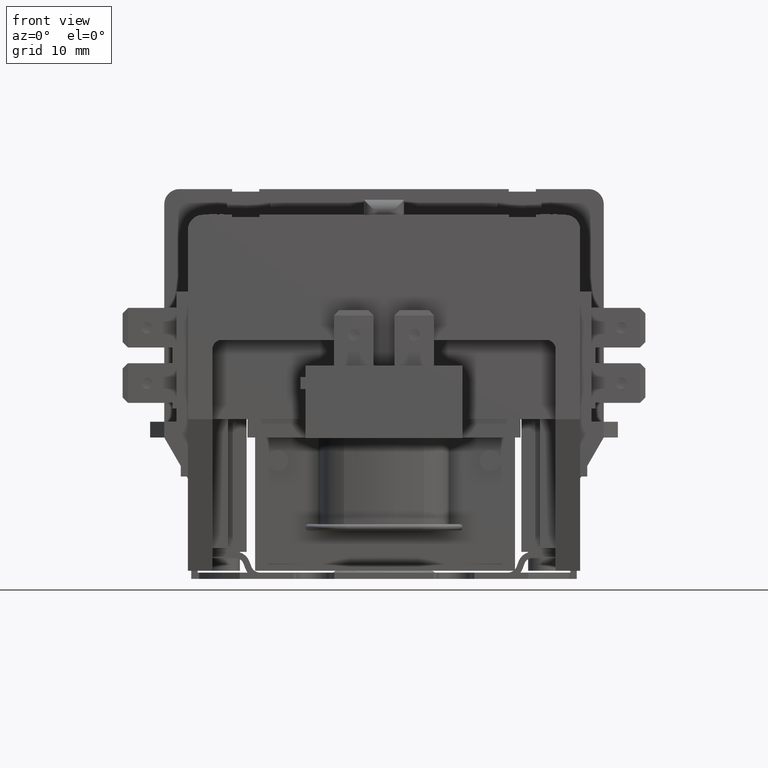
[diagram: clean part render]
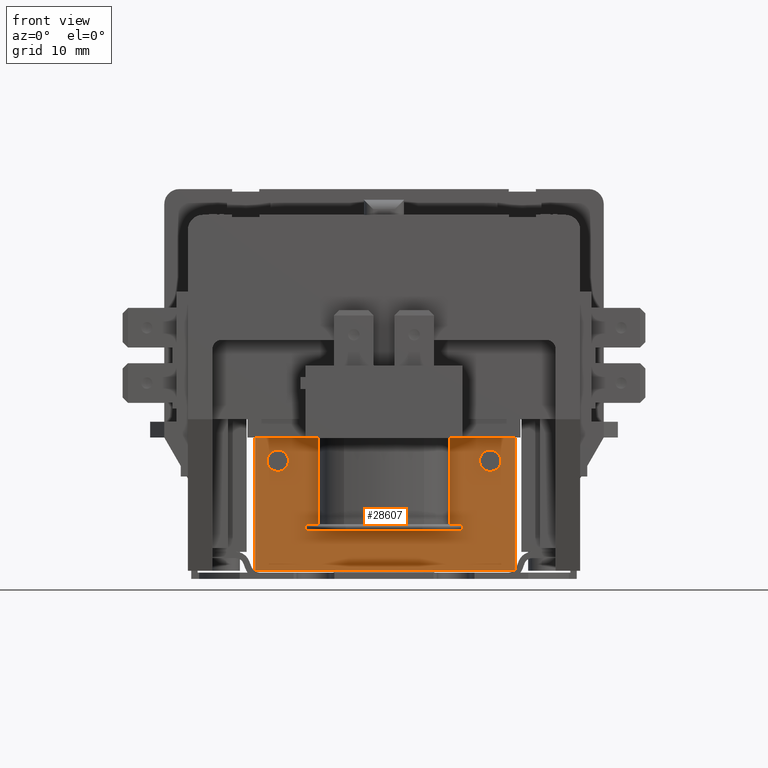
[diagram: same view with one face highlighted and labeled with its STEP entity id]
A machine part, front view. The second image highlights one B-rep face of the part: STEP entity #28607.
In plain terms, the highlighted planar face has unit normal (0, -1, 0).
Its self-contained STEP definition (entity closure, byte-faithful):
#385=LINE($,#41012,#3215);
#387=LINE($,#41020,#3217);
#388=LINE($,#41032,#3218);
#389=LINE($,#41042,#3219);
#391=LINE($,#41049,#3221);
#393=LINE($,#41057,#3223);
#394=LINE($,#41069,#3224);
#395=LINE($,#41079,#3225);
#397=LINE($,#41086,#3227);
#399=LINE($,#41094,#3229);
#400=LINE($,#41106,#3230);
#401=LINE($,#41116,#3231);
#403=LINE($,#41123,#3233);
#405=LINE($,#41131,#3235);
#406=LINE($,#41143,#3236);
#407=LINE($,#41153,#3237);
#409=LINE($,#41160,#3239);
#411=LINE($,#41168,#3241);
#412=LINE($,#41180,#3242);
#413=LINE($,#41190,#3243);
#415=LINE($,#41197,#3245);
#417=LINE($,#41205,#3247);
#418=LINE($,#41217,#3248);
#419=LINE($,#41227,#3249);
#421=LINE($,#41234,#3251);
#423=LINE($,#41242,#3253);
#424=LINE($,#41254,#3254);
#425=LINE($,#41264,#3255);
#427=LINE($,#41271,#3257);
#432=LINE($,#41315,#3262);
#433=LINE($,#41318,#3263);
#437=LINE($,#41326,#3267);
#443=LINE($,#41347,#3273);
#444=LINE($,#41350,#3274);
#451=LINE($,#41365,#3281);
#453=LINE($,#41374,#3283);
#462=LINE($,#41402,#3292);
#467=LINE($,#41417,#3297);
#468=LINE($,#41425,#3298);
#470=LINE($,#41433,#3300);
#472=LINE($,#41440,#3302);
#473=LINE($,#41448,#3303);
#474=LINE($,#41458,#3304);
#475=LINE($,#41466,#3305);
#476=LINE($,#41474,#3306);
#478=LINE($,#41481,#3308);
#479=LINE($,#41489,#3309);
#480=LINE($,#41499,#3310);
#481=LINE($,#41507,#3311);
#482=LINE($,#41515,#3312);
#484=LINE($,#41522,#3314);
#485=LINE($,#41530,#3315);
#486=LINE($,#41540,#3316);
#487=LINE($,#41548,#3317);
#488=LINE($,#41556,#3318);
#490=LINE($,#41562,#3320);
#491=LINE($,#41570,#3321);
#595=LINE($,#41977,#3425);
#597=LINE($,#41980,#3427);
#599=LINE($,#41984,#3429);
#609=LINE($,#42018,#3439);
#621=LINE($,#42092,#3451);
#632=LINE($,#42169,#3462);
#634=LINE($,#42172,#3464);
#636=LINE($,#42176,#3466);
#637=LINE($,#42182,#3467);
#638=LINE($,#42193,#3468);
#639=LINE($,#42201,#3469);
#640=LINE($,#42210,#3470);
#650=LINE($,#42229,#3480);
#652=LINE($,#42232,#3482);
#654=LINE($,#42235,#3484);
#901=LINE($,#43171,#3731);
#902=LINE($,#43172,#3732);
#903=LINE($,#43173,#3733);
#904=LINE($,#43174,#3734);
#905=LINE($,#43175,#3735);
#906=LINE($,#43176,#3736);
#907=LINE($,#43178,#3737);
#908=LINE($,#43179,#3738);
#3215=VECTOR($,#32981,1.00000000000655E-005);
#3217=VECTOR($,#32989,0.0010129492435631);
#3218=VECTOR($,#33000,0.00101294924356399);
#3219=VECTOR($,#33011,0.14999);
#3221=VECTOR($,#33017,0.14999);
#3223=VECTOR($,#33025,0.0010129492435631);
#3224=VECTOR($,#33036,0.00101294924356399);
#3225=VECTOR($,#33047,1.00000000000655E-005);
#3227=VECTOR($,#33053,1.00000000000655E-005);
#3229=VECTOR($,#33061,0.0010129492435631);
#3230=VECTOR($,#33072,0.00101294924356399);
#3231=VECTOR($,#33083,0.14999);
#3233=VECTOR($,#33089,0.14999);
#3235=VECTOR($,#33097,0.0010129492435631);
#3236=VECTOR($,#33108,0.00101294924356399);
#3237=VECTOR($,#33119,1.00000000000655E-005);
#3239=VECTOR($,#33125,9.99999999962142E-006);
#3241=VECTOR($,#33133,0.0010129492435631);
#3242=VECTOR($,#33144,0.00101294924356399);
#3243=VECTOR($,#33155,0.14999);
#3245=VECTOR($,#33161,0.14999);
#3247=VECTOR($,#33169,0.0010129492435631);
#3248=VECTOR($,#33180,0.00101294924356399);
#3249=VECTOR($,#33191,1.00000000000655E-005);
#3251=VECTOR($,#33197,1.00000000000655E-005);
#3253=VECTOR($,#33205,0.0010129492435631);
#3254=VECTOR($,#33216,0.00101294924356399);
#3255=VECTOR($,#33227,0.16999);
#3257=VECTOR($,#33233,0.14999);
#3262=VECTOR($,#33244,1.29572952476056);
#3263=VECTOR($,#33247,0.206150536633437);
#3267=VECTOR($,#33251,0.206150536633435);
#3273=VECTOR($,#33269,2.12);
#3274=VECTOR($,#33272,0.00999999999762968);
#3281=VECTOR($,#33281,1.00000000000655E-005);
#3283=VECTOR($,#33289,0.15);
#3292=VECTOR($,#33310,2.11999999999731);
#3297=VECTOR($,#33323,0.156150536633436);
#3298=VECTOR($,#33332,0.156150536633436);
#3300=VECTOR($,#33340,0.15);
#3302=VECTOR($,#33346,0.0010129492435631);
#3303=VECTOR($,#33355,0.00101294924356399);
#3304=VECTOR($,#33366,0.0010129492435631);
#3305=VECTOR($,#33375,0.00101294924356399);
#3306=VECTOR($,#33384,1.00000000000655E-005);
#3308=VECTOR($,#33390,0.0010129492435631);
#3309=VECTOR($,#33399,0.00101294924356399);
#3310=VECTOR($,#33410,0.0010129492435631);
#3311=VECTOR($,#33419,0.00101294924356399);
#3312=VECTOR($,#33428,0.14999);
#3314=VECTOR($,#33434,0.0010129492435631);
#3315=VECTOR($,#33443,0.00101294924356399);
#3316=VECTOR($,#33454,0.0010129492435631);
#3317=VECTOR($,#33463,0.00101294924356399);
#3318=VECTOR($,#33472,1.00000000000655E-005);
#3320=VECTOR($,#33478,0.0010129492435631);
#3321=VECTOR($,#33487,0.00101294924356399);
#3425=VECTOR($,#33869,1.00000000000655E-005);
#3427=VECTOR($,#33873,0.14999);
#3429=VECTOR($,#33877,1.00000000000655E-005);
#3439=VECTOR($,#33913,0.834343233901132);
#3451=VECTOR($,#33995,0.799999999999022);
#3462=VECTOR($,#34024,1.00000000000655E-005);
#3464=VECTOR($,#34028,0.14999);
#3466=VECTOR($,#34032,0.0010129492435631);
#3467=VECTOR($,#34039,0.00101294924356399);
#3468=VECTOR($,#34050,0.0010129492435631);
#3469=VECTOR($,#34059,0.00101294924356399);
#3470=VECTOR($,#34070,0.00999999999762968);
#3480=VECTOR($,#34082,0.16999);
#3482=VECTOR($,#34086,1.00000000000655E-005);
#3484=VECTOR($,#34090,0.14999);
#3731=VECTOR($,#34673,0.14999);
#3732=VECTOR($,#34674,1.00000000000655E-005);
#3733=VECTOR($,#34675,0.14999);
#3734=VECTOR($,#34676,9.99999999962142E-006);
#3735=VECTOR($,#34677,0.14999);
#3736=VECTOR($,#34678,2.4);
#3737=VECTOR($,#34679,1.50854095047688);
#3738=VECTOR($,#34680,1.33007275866271);
#6255=PLANE($,#30673);
#7162=FACE_BOUND($,#9208,.T.);
#7163=FACE_BOUND($,#9209,.T.);
#7164=FACE_BOUND($,#9210,.T.);
#9208=EDGE_LOOP($,(#19992));
#9209=EDGE_LOOP($,(#19993));
#9210=EDGE_LOOP($,(#19994,#19995,#19996,#19997,#19998,#19999,#20000,#20001,
#20002,#20003,#20004,#20005,#20006,#20007,#20008,#20009,#20010,#20011,#20012,
#20013,#20014,#20015,#20016,#20017,#20018,#20019,#20020,#20021,#20022,#20023,
#20024,#20025,#20026,#20027,#20028,#20029,#20030,#20031,#20032,#20033,#20034,
#20035,#20036,#20037,#20038,#20039,#20040,#20041,#20042,#20043,#20044,#20045,
#20046,#20047,#20048,#20049,#20050,#20051,#20052,#20053,#20054,#20055,#20056,
#20057,#20058,#20059,#20060,#20061,#20062,#20063,#20064,#20065,#20066,#20067,
#20068,#20069,#20070,#20071,#20072,#20073,#20074,#20075));
#10885=CIRCLE($,#30211,0.05);
#10887=CIRCLE($,#30215,0.0500000000000001);
#11197=CIRCLE($,#30674,0.17);
#11198=CIRCLE($,#30675,0.17);
#11980=VERTEX_POINT($,#41010);
#11981=VERTEX_POINT($,#41011);
#11984=VERTEX_POINT($,#41019);
#11989=VERTEX_POINT($,#41029);
#11990=VERTEX_POINT($,#41031);
#11994=VERTEX_POINT($,#41041);
#11996=VERTEX_POINT($,#41047);
#11997=VERTEX_POINT($,#41048);
#12000=VERTEX_POINT($,#41056);
#12005=VERTEX_POINT($,#41066);
#12006=VERTEX_POINT($,#41068);
#12010=VERTEX_POINT($,#41078);
#12012=VERTEX_POINT($,#41084);
#12013=VERTEX_POINT($,#41085);
#12016=VERTEX_POINT($,#41093);
#12021=VERTEX_POINT($,#41103);
#12022=VERTEX_POINT($,#41105);
#12026=VERTEX_POINT($,#41115);
#12028=VERTEX_POINT($,#41121);
#12029=VERTEX_POINT($,#41122);
#12032=VERTEX_POINT($,#41130);
#12037=VERTEX_POINT($,#41140);
#12038=VERTEX_POINT($,#41142);
#12042=VERTEX_POINT($,#41152);
#12044=VERTEX_POINT($,#41158);
#12045=VERTEX_POINT($,#41159);
#12048=VERTEX_POINT($,#41167);
#12053=VERTEX_POINT($,#41177);
#12054=VERTEX_POINT($,#41179);
#12058=VERTEX_POINT($,#41189);
#12060=VERTEX_POINT($,#41195);
#12061=VERTEX_POINT($,#41196);
#12064=VERTEX_POINT($,#41204);
#12069=VERTEX_POINT($,#41214);
#12070=VERTEX_POINT($,#41216);
#12074=VERTEX_POINT($,#41226);
#12076=VERTEX_POINT($,#41232);
#12077=VERTEX_POINT($,#41233);
#12080=VERTEX_POINT($,#41241);
#12085=VERTEX_POINT($,#41251);
#12086=VERTEX_POINT($,#41253);
#12090=VERTEX_POINT($,#41263);
#12092=VERTEX_POINT($,#41269);
#12093=VERTEX_POINT($,#41270);
#12097=VERTEX_POINT($,#41279);
#12105=VERTEX_POINT($,#41310);
#12106=VERTEX_POINT($,#41317);
#12109=VERTEX_POINT($,#41323);
#12110=VERTEX_POINT($,#41325);
#12119=VERTEX_POINT($,#41344);
#12120=VERTEX_POINT($,#41349);
#12126=VERTEX_POINT($,#41363);
#12127=VERTEX_POINT($,#41364);
#12130=VERTEX_POINT($,#41372);
#12131=VERTEX_POINT($,#41373);
#12134=VERTEX_POINT($,#41381);
#12135=VERTEX_POINT($,#41382);
#12143=VERTEX_POINT($,#41399);
#12144=VERTEX_POINT($,#41401);
#12146=VERTEX_POINT($,#41407);
#12147=VERTEX_POINT($,#41408);
#12150=VERTEX_POINT($,#41416);
#12156=VERTEX_POINT($,#41432);
#12158=VERTEX_POINT($,#41438);
#12159=VERTEX_POINT($,#41439);
#12166=VERTEX_POINT($,#41457);
#12172=VERTEX_POINT($,#41473);
#12174=VERTEX_POINT($,#41479);
#12175=VERTEX_POINT($,#41480);
#12182=VERTEX_POINT($,#41498);
#12188=VERTEX_POINT($,#41514);
#12190=VERTEX_POINT($,#41520);
#12191=VERTEX_POINT($,#41521);
#12198=VERTEX_POINT($,#41539);
#12204=VERTEX_POINT($,#41555);
#12206=VERTEX_POINT($,#41561);
#12374=VERTEX_POINT($,#41983);
#12412=VERTEX_POINT($,#42091);
#12430=VERTEX_POINT($,#42175);
#12436=VERTEX_POINT($,#42191);
#12437=VERTEX_POINT($,#42192);
#12751=VERTEX_POINT($,#43167);
#12752=VERTEX_POINT($,#43169);
#12753=VERTEX_POINT($,#43177);
#14650=EDGE_CURVE($,#11980,#11981,#385,.T.);
#14654=EDGE_CURVE($,#11981,#11984,#387,.T.);
#14660=EDGE_CURVE($,#11989,#11990,#388,.T.);
#14665=EDGE_CURVE($,#11984,#11994,#389,.T.);
#14668=EDGE_CURVE($,#11996,#11997,#391,.T.);
#14672=EDGE_CURVE($,#11994,#12000,#393,.T.);
#14678=EDGE_CURVE($,#12005,#12006,#394,.T.);
#14683=EDGE_CURVE($,#12000,#12010,#395,.T.);
#14686=EDGE_CURVE($,#12012,#12013,#397,.T.);
#14690=EDGE_CURVE($,#12010,#12016,#399,.T.);
#14696=EDGE_CURVE($,#12021,#12022,#400,.T.);
#14701=EDGE_CURVE($,#12016,#12026,#401,.T.);
#14704=EDGE_CURVE($,#12028,#12029,#403,.T.);
#14708=EDGE_CURVE($,#12026,#12032,#405,.T.);
#14714=EDGE_CURVE($,#12037,#12038,#406,.T.);
#14719=EDGE_CURVE($,#12032,#12042,#407,.T.);
#14722=EDGE_CURVE($,#12044,#12045,#409,.T.);
#14726=EDGE_CURVE($,#12042,#12048,#411,.T.);
#14732=EDGE_CURVE($,#12053,#12054,#412,.T.);
#14737=EDGE_CURVE($,#12048,#12058,#413,.T.);
#14740=EDGE_CURVE($,#12060,#12061,#415,.T.);
#14744=EDGE_CURVE($,#12058,#12064,#417,.T.);
#14750=EDGE_CURVE($,#12069,#12070,#418,.T.);
#14755=EDGE_CURVE($,#12064,#12074,#419,.T.);
#14758=EDGE_CURVE($,#12076,#12077,#421,.T.);
#14762=EDGE_CURVE($,#12074,#12080,#423,.T.);
#14768=EDGE_CURVE($,#12085,#12086,#424,.T.);
#14773=EDGE_CURVE($,#12080,#12090,#425,.T.);
#14776=EDGE_CURVE($,#12092,#12093,#427,.T.);
#14789=EDGE_CURVE($,#12097,#12105,#432,.T.);
#14790=EDGE_CURVE($,#12090,#12106,#433,.T.);
#14794=EDGE_CURVE($,#12109,#12110,#437,.T.);
#14805=EDGE_CURVE($,#12097,#12119,#443,.T.);
#14806=EDGE_CURVE($,#12106,#12120,#444,.T.);
#14813=EDGE_CURVE($,#12126,#12127,#451,.T.);
#14817=EDGE_CURVE($,#12130,#12131,#453,.T.);
#14821=EDGE_CURVE($,#12134,#12135,#10885,.T.);
#14830=EDGE_CURVE($,#12144,#12143,#462,.T.);
#14833=EDGE_CURVE($,#12146,#12147,#10887,.T.);
#14837=EDGE_CURVE($,#12147,#12150,#467,.T.);
#14842=EDGE_CURVE($,#12131,#12134,#468,.T.);
#14846=EDGE_CURVE($,#12150,#12156,#470,.T.);
#14849=EDGE_CURVE($,#12158,#12159,#472,.T.);
#14854=EDGE_CURVE($,#12013,#12028,#473,.T.);
#14859=EDGE_CURVE($,#12156,#12166,#474,.T.);
#14864=EDGE_CURVE($,#12127,#12130,#475,.T.);
#14868=EDGE_CURVE($,#12166,#12172,#476,.T.);
#14871=EDGE_CURVE($,#12174,#12175,#478,.T.);
#14876=EDGE_CURVE($,#12029,#12044,#479,.T.);
#14881=EDGE_CURVE($,#12172,#12182,#480,.T.);
#14886=EDGE_CURVE($,#12093,#12126,#481,.T.);
#14890=EDGE_CURVE($,#12182,#12188,#482,.T.);
#14893=EDGE_CURVE($,#12190,#12191,#484,.T.);
#14898=EDGE_CURVE($,#12045,#12060,#485,.T.);
#14903=EDGE_CURVE($,#12188,#12198,#486,.T.);
#14908=EDGE_CURVE($,#12077,#12092,#487,.T.);
#14912=EDGE_CURVE($,#12198,#12204,#488,.T.);
#14915=EDGE_CURVE($,#12204,#12206,#490,.T.);
#14920=EDGE_CURVE($,#12061,#12076,#491,.T.);
#15129=EDGE_CURVE($,#12022,#12005,#595,.T.);
#15131=EDGE_CURVE($,#12006,#11989,#597,.T.);
#15133=EDGE_CURVE($,#11990,#12374,#599,.T.);
#15151=EDGE_CURVE($,#12120,#12143,#609,.T.);
#15189=EDGE_CURVE($,#12412,#12119,#621,.T.);
#15211=EDGE_CURVE($,#12054,#12037,#632,.T.);
#15213=EDGE_CURVE($,#12038,#12021,#634,.T.);
#15215=EDGE_CURVE($,#12430,#11980,#636,.T.);
#15219=EDGE_CURVE($,#12374,#11996,#637,.T.);
#15224=EDGE_CURVE($,#12436,#12437,#638,.T.);
#15229=EDGE_CURVE($,#11997,#12012,#639,.T.);
#15234=EDGE_CURVE($,#12412,#12109,#640,.T.);
#15244=EDGE_CURVE($,#12110,#12085,#650,.T.);
#15246=EDGE_CURVE($,#12086,#12069,#652,.T.);
#15248=EDGE_CURVE($,#12070,#12053,#654,.T.);
#15616=EDGE_CURVE($,#12751,#12751,#11197,.T.);
#15617=EDGE_CURVE($,#12752,#12752,#11198,.T.);
#15618=EDGE_CURVE($,#12437,#12430,#901,.T.);
#15619=EDGE_CURVE($,#12159,#12436,#902,.T.);
#15620=EDGE_CURVE($,#12175,#12158,#903,.T.);
#15621=EDGE_CURVE($,#12191,#12174,#904,.T.);
#15622=EDGE_CURVE($,#12206,#12190,#905,.T.);
#15623=EDGE_CURVE($,#12146,#12135,#906,.T.);
#15624=EDGE_CURVE($,#12753,#12105,#907,.T.);
#15625=EDGE_CURVE($,#12144,#12753,#908,.T.);
#19992=ORIENTED_EDGE($,*,*,#15616,.T.);
#19993=ORIENTED_EDGE($,*,*,#15617,.T.);
#19994=ORIENTED_EDGE($,*,*,#15151,.F.);
#19995=ORIENTED_EDGE($,*,*,#14806,.F.);
#19996=ORIENTED_EDGE($,*,*,#14790,.F.);
#19997=ORIENTED_EDGE($,*,*,#14773,.F.);
#19998=ORIENTED_EDGE($,*,*,#14762,.F.);
#19999=ORIENTED_EDGE($,*,*,#14755,.F.);
#20000=ORIENTED_EDGE($,*,*,#14744,.F.);
#20001=ORIENTED_EDGE($,*,*,#14737,.F.);
#20002=ORIENTED_EDGE($,*,*,#14726,.F.);
#20003=ORIENTED_EDGE($,*,*,#14719,.F.);
#20004=ORIENTED_EDGE($,*,*,#14708,.F.);
#20005=ORIENTED_EDGE($,*,*,#14701,.F.);
#20006=ORIENTED_EDGE($,*,*,#14690,.F.);
#20007=ORIENTED_EDGE($,*,*,#14683,.F.);
#20008=ORIENTED_EDGE($,*,*,#14672,.F.);
#20009=ORIENTED_EDGE($,*,*,#14665,.F.);
#20010=ORIENTED_EDGE($,*,*,#14654,.F.);
#20011=ORIENTED_EDGE($,*,*,#14650,.F.);
#20012=ORIENTED_EDGE($,*,*,#15215,.F.);
#20013=ORIENTED_EDGE($,*,*,#15618,.F.);
#20014=ORIENTED_EDGE($,*,*,#15224,.F.);
#20015=ORIENTED_EDGE($,*,*,#15619,.F.);
#20016=ORIENTED_EDGE($,*,*,#14849,.F.);
#20017=ORIENTED_EDGE($,*,*,#15620,.F.);
#20018=ORIENTED_EDGE($,*,*,#14871,.F.);
#20019=ORIENTED_EDGE($,*,*,#15621,.F.);
#20020=ORIENTED_EDGE($,*,*,#14893,.F.);
#20021=ORIENTED_EDGE($,*,*,#15622,.F.);
#20022=ORIENTED_EDGE($,*,*,#14915,.F.);
#20023=ORIENTED_EDGE($,*,*,#14912,.F.);
#20024=ORIENTED_EDGE($,*,*,#14903,.F.);
#20025=ORIENTED_EDGE($,*,*,#14890,.F.);
#20026=ORIENTED_EDGE($,*,*,#14881,.F.);
#20027=ORIENTED_EDGE($,*,*,#14868,.F.);
#20028=ORIENTED_EDGE($,*,*,#14859,.F.);
#20029=ORIENTED_EDGE($,*,*,#14846,.F.);
#20030=ORIENTED_EDGE($,*,*,#14837,.F.);
#20031=ORIENTED_EDGE($,*,*,#14833,.F.);
#20032=ORIENTED_EDGE($,*,*,#15623,.T.);
#20033=ORIENTED_EDGE($,*,*,#14821,.F.);
#20034=ORIENTED_EDGE($,*,*,#14842,.F.);
#20035=ORIENTED_EDGE($,*,*,#14817,.F.);
#20036=ORIENTED_EDGE($,*,*,#14864,.F.);
#20037=ORIENTED_EDGE($,*,*,#14813,.F.);
#20038=ORIENTED_EDGE($,*,*,#14886,.F.);
#20039=ORIENTED_EDGE($,*,*,#14776,.F.);
#20040=ORIENTED_EDGE($,*,*,#14908,.F.);
#20041=ORIENTED_EDGE($,*,*,#14758,.F.);
#20042=ORIENTED_EDGE($,*,*,#14920,.F.);
#20043=ORIENTED_EDGE($,*,*,#14740,.F.);
#20044=ORIENTED_EDGE($,*,*,#14898,.F.);
#20045=ORIENTED_EDGE($,*,*,#14722,.F.);
#20046=ORIENTED_EDGE($,*,*,#14876,.F.);
#20047=ORIENTED_EDGE($,*,*,#14704,.F.);
#20048=ORIENTED_EDGE($,*,*,#14854,.F.);
#20049=ORIENTED_EDGE($,*,*,#14686,.F.);
#20050=ORIENTED_EDGE($,*,*,#15229,.F.);
#20051=ORIENTED_EDGE($,*,*,#14668,.F.);
#20052=ORIENTED_EDGE($,*,*,#15219,.F.);
#20053=ORIENTED_EDGE($,*,*,#15133,.F.);
#20054=ORIENTED_EDGE($,*,*,#14660,.F.);
#20055=ORIENTED_EDGE($,*,*,#15131,.F.);
#20056=ORIENTED_EDGE($,*,*,#14678,.F.);
#20057=ORIENTED_EDGE($,*,*,#15129,.F.);
#20058=ORIENTED_EDGE($,*,*,#14696,.F.);
#20059=ORIENTED_EDGE($,*,*,#15213,.F.);
#20060=ORIENTED_EDGE($,*,*,#14714,.F.);
#20061=ORIENTED_EDGE($,*,*,#15211,.F.);
#20062=ORIENTED_EDGE($,*,*,#14732,.F.);
#20063=ORIENTED_EDGE($,*,*,#15248,.F.);
#20064=ORIENTED_EDGE($,*,*,#14750,.F.);
#20065=ORIENTED_EDGE($,*,*,#15246,.F.);
#20066=ORIENTED_EDGE($,*,*,#14768,.F.);
#20067=ORIENTED_EDGE($,*,*,#15244,.F.);
#20068=ORIENTED_EDGE($,*,*,#14794,.F.);
#20069=ORIENTED_EDGE($,*,*,#15234,.F.);
#20070=ORIENTED_EDGE($,*,*,#15189,.T.);
#20071=ORIENTED_EDGE($,*,*,#14805,.F.);
#20072=ORIENTED_EDGE($,*,*,#14789,.T.);
#20073=ORIENTED_EDGE($,*,*,#15624,.F.);
#20074=ORIENTED_EDGE($,*,*,#15625,.F.);
#20075=ORIENTED_EDGE($,*,*,#14830,.T.);
#28607=ADVANCED_FACE($,(#7162,#7163,#7164),#6255,.T.);
#30211=AXIS2_PLACEMENT_3D($,#41383,#33297,#33298);
#30215=AXIS2_PLACEMENT_3D($,#41409,#33315,#33316);
#30673=AXIS2_PLACEMENT_3D($,#43166,#34667,#34668);
#30674=AXIS2_PLACEMENT_3D($,#43168,#34669,#34670);
#30675=AXIS2_PLACEMENT_3D($,#43170,#34671,#34672);
#32981=DIRECTION($,(-5.17810930781136E-048,-3.17067749472315E-064,1.));
#32989=DIRECTION($,(-1.,0.,4.36502059086675E-032));
#33000=DIRECTION($,(-1.,0.,4.36502059086675E-032));
#33011=DIRECTION($,(-5.17810930781136E-048,-3.17067749472315E-064,1.));
#33017=DIRECTION($,(5.17810930781136E-048,3.17067749472315E-064,-1.));
#33025=DIRECTION($,(1.,0.,-2.74996297224605E-032));
#33036=DIRECTION($,(1.,0.,-2.74996297224605E-032));
#33047=DIRECTION($,(-5.17810930781136E-048,-3.17067749472315E-064,1.));
#33053=DIRECTION($,(5.17810930781136E-048,3.17067749472315E-064,-1.));
#33061=DIRECTION($,(-1.,0.,4.36502059086675E-032));
#33072=DIRECTION($,(-1.,0.,4.36502059086675E-032));
#33083=DIRECTION($,(-5.17810930781136E-048,-3.17067749472315E-064,1.));
#33089=DIRECTION($,(5.17810930781136E-048,3.17067749472315E-064,-1.));
#33097=DIRECTION($,(1.,0.,-2.74996297224605E-032));
#33108=DIRECTION($,(1.,0.,-2.74996297224605E-032));
#33119=DIRECTION($,(-5.17810930781136E-048,-3.17067749472315E-064,1.));
#33125=DIRECTION($,(5.17810930781136E-048,3.17067749472315E-064,-1.));
#33133=DIRECTION($,(-1.,0.,4.36502059086675E-032));
#33144=DIRECTION($,(-1.,0.,4.36502059086675E-032));
#33155=DIRECTION($,(-5.17810930781136E-048,-3.17067749472315E-064,1.));
#33161=DIRECTION($,(5.17810930781136E-048,3.17067749472315E-064,-1.));
#33169=DIRECTION($,(1.,0.,-2.74996297224605E-032));
#33180=DIRECTION($,(1.,0.,-2.74996297224605E-032));
#33191=DIRECTION($,(-5.17810930781136E-048,-3.17067749472315E-064,1.));
#33197=DIRECTION($,(5.17810930781136E-048,3.17067749472315E-064,-1.));
#33205=DIRECTION($,(-1.,0.,4.36502059086675E-032));
#33216=DIRECTION($,(-1.,0.,4.36502059086675E-032));
#33227=DIRECTION($,(-5.17810930781136E-048,-3.17067749472315E-064,1.));
#33233=DIRECTION($,(5.17810930781136E-048,3.17067749472315E-064,-1.));
#33244=DIRECTION($,(1.,6.12323399573675E-017,8.30221547505104E-048));
#33247=DIRECTION($,(1.,0.,7.58537019259243E-032));
#33251=DIRECTION($,(1.,0.,7.58537019259243E-032));
#33269=DIRECTION($,(-8.30221547505104E-048,-5.08364080367643E-064,1.));
#33272=DIRECTION($,(-5.17810930781136E-048,0.,1.));
#33281=DIRECTION($,(5.17810930781136E-048,3.17067749472315E-064,-1.));
#33289=DIRECTION($,(5.17810930781136E-048,3.17067749472315E-064,-1.));
#33297=DIRECTION('center_axis',(0.,-1.,0.));
#33298=DIRECTION('ref_axis',(5.17810930781136E-048,3.17067749472315E-064,
-1.));
#33310=DIRECTION($,(-8.30221547505104E-048,-5.08364080367643E-064,1.));
#33315=DIRECTION('center_axis',(0.,-1.,0.));
#33316=DIRECTION('ref_axis',(-5.17810930781136E-048,-3.17067749472315E-064,
1.));
#33323=DIRECTION($,(-1.,0.,-5.17810930781136E-048));
#33332=DIRECTION($,(-1.,0.,-5.17810930781136E-048));
#33340=DIRECTION($,(-5.17810930781136E-048,-3.17067749472315E-064,1.));
#33346=DIRECTION($,(1.,0.,-2.74996297224605E-032));
#33355=DIRECTION($,(1.,0.,-2.74996297224605E-032));
#33366=DIRECTION($,(1.,0.,-2.74996297224605E-032));
#33375=DIRECTION($,(1.,0.,-2.74996297224605E-032));
#33384=DIRECTION($,(-5.17810930781136E-048,-3.17067749472315E-064,1.));
#33390=DIRECTION($,(-1.,0.,4.36502059086675E-032));
#33399=DIRECTION($,(-1.,0.,4.36502059086675E-032));
#33410=DIRECTION($,(-1.,0.,4.36502059086675E-032));
#33419=DIRECTION($,(-1.,0.,4.36502059086675E-032));
#33428=DIRECTION($,(-5.17810930781136E-048,-3.17067749472315E-064,1.));
#33434=DIRECTION($,(1.,0.,-2.74996297224605E-032));
#33443=DIRECTION($,(1.,0.,-2.74996297224605E-032));
#33454=DIRECTION($,(1.,0.,-2.74996297224605E-032));
#33463=DIRECTION($,(1.,0.,-2.74996297224605E-032));
#33472=DIRECTION($,(-5.17810930781136E-048,-3.17067749472315E-064,1.));
#33478=DIRECTION($,(-1.,0.,4.36502059086675E-032));
#33487=DIRECTION($,(-1.,0.,4.36502059086675E-032));
#33869=DIRECTION($,(5.17810930781136E-048,3.17067749472315E-064,-1.));
#33873=DIRECTION($,(5.17810930781136E-048,3.17067749472315E-064,-1.));
#33877=DIRECTION($,(5.17810930781136E-048,3.17067749472315E-064,-1.));
#33913=DIRECTION($,(1.,0.,-1.29227014405186E-012));
#33995=DIRECTION($,(-1.,-6.12323399573675E-017,-5.17810930781136E-048));
#34024=DIRECTION($,(5.17810930781136E-048,3.17067749472315E-064,-1.));
#34028=DIRECTION($,(5.17810930781136E-048,3.17067749472315E-064,-1.));
#34032=DIRECTION($,(1.,0.,-2.74996297224605E-032));
#34039=DIRECTION($,(1.,0.,-2.74996297224605E-032));
#34050=DIRECTION($,(-1.,0.,4.36502059086675E-032));
#34059=DIRECTION($,(-1.,0.,4.36502059086675E-032));
#34070=DIRECTION($,(5.17810930781136E-048,0.,-1.));
#34082=DIRECTION($,(5.17810930781136E-048,3.17067749472315E-064,-1.));
#34086=DIRECTION($,(5.17810930781136E-048,3.17067749472315E-064,-1.));
#34090=DIRECTION($,(5.17810930781136E-048,3.17067749472315E-064,-1.));
#34667=DIRECTION('center_axis',(6.12323399573675E-017,-1.,0.));
#34668=DIRECTION('ref_axis',(1.,1.11022302462516E-016,0.));
#34669=DIRECTION('center_axis',(-6.12323399573675E-017,1.,0.));
#34670=DIRECTION('ref_axis',(1.,6.12323399573675E-017,0.));
#34671=DIRECTION('center_axis',(-6.12323399573675E-017,1.,0.));
#34672=DIRECTION('ref_axis',(1.,6.12323399573675E-017,0.));
#34673=DIRECTION($,(-5.17810930781136E-048,-3.17067749472315E-064,1.));
#34674=DIRECTION($,(-5.17810930781136E-048,-3.17067749472315E-064,1.));
#34675=DIRECTION($,(-5.17810930781136E-048,-3.17067749472315E-064,1.));
#34676=DIRECTION($,(-5.17810930781136E-048,-3.17067749472315E-064,1.));
#34677=DIRECTION($,(-5.17810930781136E-048,-3.17067749472315E-064,1.));
#34678=DIRECTION($,(-1.,-6.12323399573675E-017,-5.17810930781136E-048));
#34679=DIRECTION($,(-1.,-6.12323399573675E-017,-3.74939945665464E-033));
#34680=DIRECTION($,(-1.,-6.12323399573675E-017,-8.30221547505104E-048));
#41010=CARTESIAN_POINT('',(1.04486241261013,-0.7000000000002,1.59));
#41011=CARTESIAN_POINT('',(1.04486241261013,-0.7000000000002,1.59001));
#41012=CARTESIAN_POINT($,(1.04486241261013,-0.7000000000002,1.59));
#41019=CARTESIAN_POINT('',(1.04384946336656,-0.7000000000002,1.59001));
#41020=CARTESIAN_POINT($,(0.00858580847552738,-0.7000000000002,1.59001));
#41029=CARTESIAN_POINT('',(-1.04384946336656,-0.7000000000002,1.59001));
#41031=CARTESIAN_POINT('',(-1.04486241261013,-0.7000000000002,1.59001));
#41032=CARTESIAN_POINT($,(0.00858580847552738,-0.7000000000002,1.59001));
#41041=CARTESIAN_POINT('',(1.04384946336656,-0.7000000000002,1.74));
#41042=CARTESIAN_POINT($,(1.04384946336656,-0.7000000000002,0.84));
#41047=CARTESIAN_POINT('',(-1.04384946336656,-0.7000000000002,1.59));
#41048=CARTESIAN_POINT('',(-1.04384946336656,-0.7000000000002,1.44001));
#41049=CARTESIAN_POINT($,(-1.04384946336656,-0.7000000000002,0.84));
#41056=CARTESIAN_POINT('',(1.04486241261013,-0.7000000000002,1.74));
#41057=CARTESIAN_POINT($,(0.00858580847552744,-0.7000000000002,1.74));
#41066=CARTESIAN_POINT('',(-1.04486241261013,-0.7000000000002,1.74));
#41068=CARTESIAN_POINT('',(-1.04384946336656,-0.7000000000002,1.74));
#41069=CARTESIAN_POINT($,(0.00858580847552744,-0.7000000000002,1.74));
#41078=CARTESIAN_POINT('',(1.04486241261013,-0.7000000000002,1.74001));
#41079=CARTESIAN_POINT($,(1.04486241261013,-0.7000000000002,1.74));
#41084=CARTESIAN_POINT('',(-1.04486241261013,-0.7000000000002,1.44001));
#41085=CARTESIAN_POINT('',(-1.04486241261013,-0.7000000000002,1.44));
#41086=CARTESIAN_POINT($,(-1.04486241261013,-0.7000000000002,1.44));
#41093=CARTESIAN_POINT('',(1.04384946336656,-0.7000000000002,1.74001));
#41094=CARTESIAN_POINT($,(0.00858580847552738,-0.7000000000002,1.74001));
#41103=CARTESIAN_POINT('',(-1.04384946336656,-0.7000000000002,1.74001));
#41105=CARTESIAN_POINT('',(-1.04486241261013,-0.7000000000002,1.74001));
#41106=CARTESIAN_POINT($,(0.00858580847552738,-0.7000000000002,1.74001));
#41115=CARTESIAN_POINT('',(1.04384946336656,-0.7000000000002,1.89));
#41116=CARTESIAN_POINT($,(1.04384946336656,-0.7000000000002,0.84));
#41121=CARTESIAN_POINT('',(-1.04384946336656,-0.7000000000002,1.44));
#41122=CARTESIAN_POINT('',(-1.04384946336656,-0.7000000000002,1.29001));
#41123=CARTESIAN_POINT($,(-1.04384946336656,-0.7000000000002,0.84));
#41130=CARTESIAN_POINT('',(1.04486241261013,-0.7000000000002,1.89));
#41131=CARTESIAN_POINT($,(0.00858580847552744,-0.7000000000002,1.89));
#41140=CARTESIAN_POINT('',(-1.04486241261013,-0.7000000000002,1.89));
#41142=CARTESIAN_POINT('',(-1.04384946336656,-0.7000000000002,1.89));
#41143=CARTESIAN_POINT($,(0.00858580847552744,-0.7000000000002,1.89));
#41152=CARTESIAN_POINT('',(1.04486241261013,-0.7000000000002,1.89001));
#41153=CARTESIAN_POINT($,(1.04486241261013,-0.7000000000002,1.89));
#41158=CARTESIAN_POINT('',(-1.04486241261013,-0.7000000000002,1.29001));
#41159=CARTESIAN_POINT('',(-1.04486241261013,-0.7000000000002,1.29));
#41160=CARTESIAN_POINT($,(-1.04486241261013,-0.7000000000002,1.29));
#41167=CARTESIAN_POINT('',(1.04384946336656,-0.7000000000002,1.89001));
#41168=CARTESIAN_POINT($,(0.00858580847552738,-0.7000000000002,1.89001));
#41177=CARTESIAN_POINT('',(-1.04384946336656,-0.7000000000002,1.89001));
#41179=CARTESIAN_POINT('',(-1.04486241261013,-0.7000000000002,1.89001));
#41180=CARTESIAN_POINT($,(0.00858580847552738,-0.7000000000002,1.89001));
#41189=CARTESIAN_POINT('',(1.04384946336656,-0.7000000000002,2.04));
#41190=CARTESIAN_POINT($,(1.04384946336656,-0.7000000000002,0.84));
#41195=CARTESIAN_POINT('',(-1.04384946336656,-0.7000000000002,1.29));
#41196=CARTESIAN_POINT('',(-1.04384946336656,-0.7000000000002,1.14001));
#41197=CARTESIAN_POINT($,(-1.04384946336656,-0.7000000000002,0.84));
#41204=CARTESIAN_POINT('',(1.04486241261013,-0.7000000000002,2.04));
#41205=CARTESIAN_POINT($,(0.00858580847552744,-0.7000000000002,2.04));
#41214=CARTESIAN_POINT('',(-1.04486241261013,-0.7000000000002,2.04));
#41216=CARTESIAN_POINT('',(-1.04384946336656,-0.7000000000002,2.04));
#41217=CARTESIAN_POINT($,(0.00858580847552744,-0.7000000000002,2.04));
#41226=CARTESIAN_POINT('',(1.04486241261013,-0.7000000000002,2.04001));
#41227=CARTESIAN_POINT($,(1.04486241261013,-0.7000000000002,2.04));
#41232=CARTESIAN_POINT('',(-1.04486241261013,-0.7000000000002,1.14001));
#41233=CARTESIAN_POINT('',(-1.04486241261013,-0.7000000000002,1.14));
#41234=CARTESIAN_POINT($,(-1.04486241261013,-0.7000000000002,1.14));
#41241=CARTESIAN_POINT('',(1.04384946336656,-0.7000000000002,2.04001));
#41242=CARTESIAN_POINT($,(0.00858580847552738,-0.7000000000002,2.04001));
#41251=CARTESIAN_POINT('',(-1.04384946336656,-0.7000000000002,2.04001));
#41253=CARTESIAN_POINT('',(-1.04486241261013,-0.7000000000002,2.04001));
#41254=CARTESIAN_POINT($,(0.00858580847552738,-0.7000000000002,2.04001));
#41263=CARTESIAN_POINT('',(1.04384946336656,-0.7000000000002,2.21));
#41264=CARTESIAN_POINT($,(1.04384946336656,-0.7000000000002,0.84));
#41269=CARTESIAN_POINT('',(-1.04384946336656,-0.7000000000002,1.14));
#41270=CARTESIAN_POINT('',(-1.04384946336656,-0.7000000000002,0.99001));
#41271=CARTESIAN_POINT($,(-1.04384946336656,-0.7000000000002,0.84));
#41279=CARTESIAN_POINT('',(-2.04999999999902,-0.7000000000002,0.1));
#41310=CARTESIAN_POINT('',(-0.754270475238461,-0.699999999999812,0.1));
#41315=CARTESIAN_POINT($,(-2.04999999999902,-0.7000000000002,0.1));
#41317=CARTESIAN_POINT('',(1.25,-0.7000000000002,2.21));
#41318=CARTESIAN_POINT($,(0.00858580847552768,-0.7000000000002,2.21));
#41323=CARTESIAN_POINT('',(-1.25,-0.7000000000002,2.21));
#41325=CARTESIAN_POINT('',(-1.04384946336656,-0.7000000000002,2.21));
#41326=CARTESIAN_POINT($,(0.00858580847552768,-0.7000000000002,2.21));
#41344=CARTESIAN_POINT('',(-2.04999999999902,-0.7,2.22));
#41347=CARTESIAN_POINT($,(-2.04999999999902,-0.7,2.22));
#41349=CARTESIAN_POINT('',(1.25,-0.7000000000002,2.21999999999763));
#41350=CARTESIAN_POINT($,(1.25,-0.7000000000002,2.07634134722101));
#41363=CARTESIAN_POINT('',(-1.04486241261013,-0.7000000000002,0.99001));
#41364=CARTESIAN_POINT('',(-1.04486241261013,-0.7000000000002,0.99));
#41365=CARTESIAN_POINT($,(-1.04486241261013,-0.7000000000002,0.99));
#41372=CARTESIAN_POINT('',(-1.04384946336656,-0.7000000000002,0.99));
#41373=CARTESIAN_POINT('',(-1.04384946336656,-0.7000000000002,0.84));
#41374=CARTESIAN_POINT($,(-1.04384946336656,-0.7000000000002,0.84));
#41381=CARTESIAN_POINT('',(-1.2,-0.7000000000002,0.84));
#41382=CARTESIAN_POINT('',(-1.2,-0.7,0.74));
#41383=CARTESIAN_POINT('Origin',(-1.2,-0.7000000000002,0.79));
#41399=CARTESIAN_POINT('',(2.08434323390113,-0.7000000000002,2.21999999999731));
#41401=CARTESIAN_POINT('',(2.08434323390113,-0.7000000000002,0.1));
#41402=CARTESIAN_POINT($,(2.08434323390113,-0.7000000000002,0.1));
#41407=CARTESIAN_POINT('',(1.2,-0.7,0.74));
#41408=CARTESIAN_POINT('',(1.2,-0.7000000000002,0.84));
#41409=CARTESIAN_POINT('Origin',(1.2,-0.7000000000002,0.79));
#41416=CARTESIAN_POINT('',(1.04384946336656,-0.7000000000002,0.84));
#41417=CARTESIAN_POINT($,(0.00858580847552762,-0.7000000000002,0.84));
#41425=CARTESIAN_POINT($,(0.00858580847552762,-0.7000000000002,0.84));
#41432=CARTESIAN_POINT('',(1.04384946336656,-0.7000000000002,0.99));
#41433=CARTESIAN_POINT($,(1.04384946336656,-0.7000000000002,0.84));
#41438=CARTESIAN_POINT('',(1.04384946336656,-0.7000000000002,1.44));
#41439=CARTESIAN_POINT('',(1.04486241261013,-0.7000000000002,1.44));
#41440=CARTESIAN_POINT($,(0.00858580847552744,-0.7000000000002,1.44));
#41448=CARTESIAN_POINT($,(0.00858580847552744,-0.7000000000002,1.44));
#41457=CARTESIAN_POINT('',(1.04486241261013,-0.7000000000002,0.99));
#41458=CARTESIAN_POINT($,(0.00858580847552744,-0.7000000000002,0.99));
#41466=CARTESIAN_POINT($,(0.00858580847552744,-0.7000000000002,0.99));
#41473=CARTESIAN_POINT('',(1.04486241261013,-0.7000000000002,0.99001));
#41474=CARTESIAN_POINT($,(1.04486241261013,-0.7000000000002,0.99));
#41479=CARTESIAN_POINT('',(1.04486241261013,-0.7000000000002,1.29001));
#41480=CARTESIAN_POINT('',(1.04384946336656,-0.7000000000002,1.29001));
#41481=CARTESIAN_POINT($,(0.00858580847552738,-0.7000000000002,1.29001));
#41489=CARTESIAN_POINT($,(0.00858580847552738,-0.7000000000002,1.29001));
#41498=CARTESIAN_POINT('',(1.04384946336656,-0.7000000000002,0.99001));
#41499=CARTESIAN_POINT($,(0.00858580847552738,-0.7000000000002,0.99001));
#41507=CARTESIAN_POINT($,(0.00858580847552738,-0.7000000000002,0.99001));
#41514=CARTESIAN_POINT('',(1.04384946336656,-0.7000000000002,1.14));
#41515=CARTESIAN_POINT($,(1.04384946336656,-0.7000000000002,0.84));
#41520=CARTESIAN_POINT('',(1.04384946336656,-0.7000000000002,1.29));
#41521=CARTESIAN_POINT('',(1.04486241261013,-0.7000000000002,1.29));
#41522=CARTESIAN_POINT($,(0.00858580847552744,-0.7000000000002,1.29));
#41530=CARTESIAN_POINT($,(0.00858580847552744,-0.7000000000002,1.29));
#41539=CARTESIAN_POINT('',(1.04486241261013,-0.7000000000002,1.14));
#41540=CARTESIAN_POINT($,(0.00858580847552744,-0.7000000000002,1.14));
#41548=CARTESIAN_POINT($,(0.00858580847552744,-0.7000000000002,1.14));
#41555=CARTESIAN_POINT('',(1.04486241261013,-0.7000000000002,1.14001));
#41556=CARTESIAN_POINT($,(1.04486241261013,-0.7000000000002,1.14));
#41561=CARTESIAN_POINT('',(1.04384946336656,-0.7000000000002,1.14001));
#41562=CARTESIAN_POINT($,(0.00858580847552738,-0.7000000000002,1.14001));
#41570=CARTESIAN_POINT($,(0.00858580847552738,-0.7000000000002,1.14001));
#41977=CARTESIAN_POINT($,(-1.04486241261013,-0.7000000000002,1.74));
#41980=CARTESIAN_POINT($,(-1.04384946336656,-0.7000000000002,0.84));
#41983=CARTESIAN_POINT('',(-1.04486241261013,-0.7000000000002,1.59));
#41984=CARTESIAN_POINT($,(-1.04486241261013,-0.7000000000002,1.59));
#42018=CARTESIAN_POINT($,(0.908585808476937,-0.7000000000002,2.21999999999883));
#42091=CARTESIAN_POINT('',(-1.25,-0.7000000000002,2.21999999999763));
#42092=CARTESIAN_POINT($,(1.17521624465336E-013,-0.7,2.21999999999763));
#42169=CARTESIAN_POINT($,(-1.04486241261013,-0.7000000000002,1.89));
#42172=CARTESIAN_POINT($,(-1.04384946336656,-0.7000000000002,0.84));
#42175=CARTESIAN_POINT('',(1.04384946336656,-0.7000000000002,1.59));
#42176=CARTESIAN_POINT($,(0.00858580847552744,-0.7000000000002,1.59));
#42182=CARTESIAN_POINT($,(0.00858580847552744,-0.7000000000002,1.59));
#42191=CARTESIAN_POINT('',(1.04486241261013,-0.7000000000002,1.44001));
#42192=CARTESIAN_POINT('',(1.04384946336656,-0.7000000000002,1.44001));
#42193=CARTESIAN_POINT($,(0.00858580847552738,-0.7000000000002,1.44001));
#42201=CARTESIAN_POINT($,(0.00858580847552738,-0.7000000000002,1.44001));
#42210=CARTESIAN_POINT($,(-1.25,-0.7000000000002,2.07634134722101));
#42229=CARTESIAN_POINT($,(-1.04384946336656,-0.7000000000002,0.84));
#42232=CARTESIAN_POINT($,(-1.04486241261013,-0.7000000000002,2.04));
#42235=CARTESIAN_POINT($,(-1.04384946336656,-0.7000000000002,0.84));
#43166=CARTESIAN_POINT('Origin',(2.3451344636962E-013,-0.7,1.38811459501593));
#43167=CARTESIAN_POINT('',(1.51999999999965,-0.7,1.84999999999936));
#43168=CARTESIAN_POINT('Origin',(1.68999999999965,-0.7,1.84999999999936));
#43169=CARTESIAN_POINT('',(-1.86,-0.7,1.84999999999936));
#43170=CARTESIAN_POINT('Origin',(-1.69,-0.7,1.84999999999936));
#43171=CARTESIAN_POINT($,(1.04384946336656,-0.7000000000002,0.84));
#43172=CARTESIAN_POINT($,(1.04486241261013,-0.7000000000002,1.44));
#43173=CARTESIAN_POINT($,(1.04384946336656,-0.7000000000002,0.84));
#43174=CARTESIAN_POINT($,(1.04486241261013,-0.7000000000002,1.29));
#43175=CARTESIAN_POINT($,(1.04384946336656,-0.7000000000002,0.84));
#43176=CARTESIAN_POINT($,(-0.0160550122374067,-0.7,0.74));
#43177=CARTESIAN_POINT('',(0.754270475238421,-0.7,0.1));
#43178=CARTESIAN_POINT($,(1.1725039892818E-013,-0.7,0.1));
#43179=CARTESIAN_POINT($,(-1.89999999999899,-0.7,0.1));